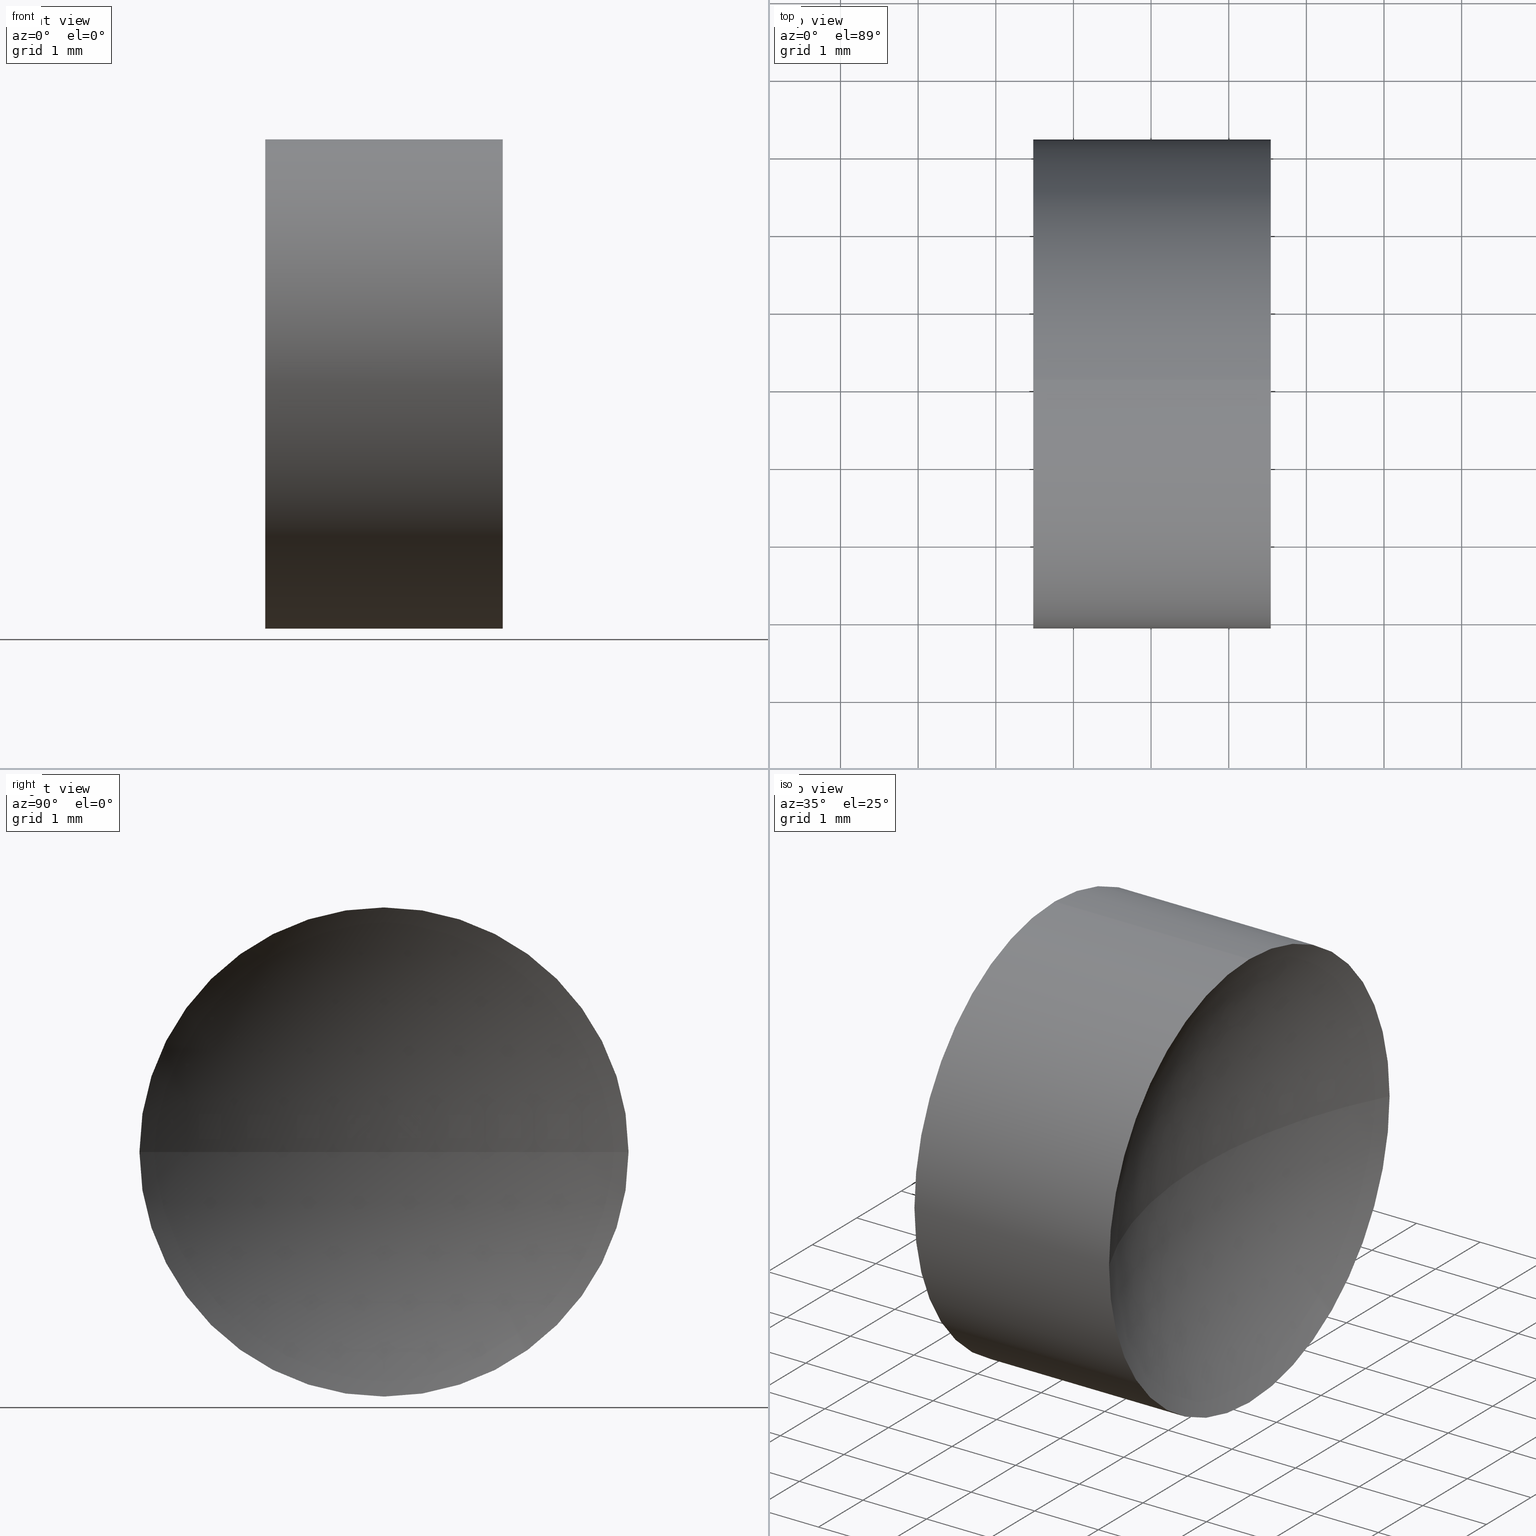
[diagram: canonical four-view strip — front | top / right | iso, engineering-drawing reading convention]
A machine part, canonical four-view strip (front | top / right | iso — engineering-drawing reading convention). The complete STEP part file that produces these views, byte-faithful:
ISO-10303-21;
HEADER;
FILE_DESCRIPTION (( 'STEP AP214' ),
    '1' );
FILE_NAME ('130006.STEP',
    '2019-06-28T06:09:00',
    ( '' ),
    ( '' ),
    'SwSTEP 2.0',
    'SolidWorks 2016',
    '' );
FILE_SCHEMA (( 'AUTOMOTIVE_DESIGN' ));
ENDSEC;

DATA;
#1 = VERTEX_POINT ( 'NONE', #31 ) ;
#2 = ORIENTED_EDGE ( 'NONE', *, *, #81, .T. ) ;
#3 = CARTESIAN_POINT ( 'NONE',  ( 31.51185287174618200, 13.04452057459747700, 0.0000000000000000000 ) ) ;
#4 = CIRCLE ( 'NONE', #230, 3.150000000000001700 ) ;
#5 = ADVANCED_BREP_SHAPE_REPRESENTATION ( '130006', ( #24, #165 ), #105 ) ;
#6 = DIRECTION ( 'NONE',  ( 0.0000000000000000000, 0.0000000000000000000, -1.000000000000000000 ) ) ;
#7 = DIRECTION ( 'NONE',  ( -1.000000000000000000, -0.0000000000000000000, -0.0000000000000000000 ) ) ;
#8 = DIRECTION ( 'NONE',  ( -1.000000000000000000, -0.0000000000000000000, -0.0000000000000000000 ) ) ;
#9 = VERTEX_POINT ( 'NONE', #139 ) ;
#10 = CARTESIAN_POINT ( 'NONE',  ( 24.76185287174618200, 13.04452057459747700, 0.0000000000000000000 ) ) ;
#11 = EDGE_CURVE ( 'NONE', #136, #87, #76, .T. ) ;
#12 = CARTESIAN_POINT ( 'NONE',  ( 16.51185287174617900, 13.04452057459748300, 0.0000000000000000000 ) ) ;
#13 = SURFACE_STYLE_USAGE ( .BOTH. , #160 ) ;
#14 = ORIENTED_EDGE ( 'NONE', *, *, #184, .T. ) ;
#15 =( NAMED_UNIT ( * ) PLANE_ANGLE_UNIT ( ) SI_UNIT ( $, .RADIAN. ) );
#16 = APPLICATION_CONTEXT ( 'automotive_design' ) ;
#17 =( LENGTH_UNIT ( ) NAMED_UNIT ( * ) SI_UNIT ( .MILLI., .METRE. ) );
#18 = ORIENTED_EDGE ( 'NONE', *, *, #100, .F. ) ;
#19 = SURFACE_STYLE_FILL_AREA ( #94 ) ;
#20 = PRODUCT_DEFINITION_SHAPE ( 'NONE', 'NONE',  #169 ) ;
#21 = SURFACE_STYLE_FILL_AREA ( #60 ) ;
#22 = ORIENTED_EDGE ( 'NONE', *, *, #203, .T. ) ;
#23 = VERTEX_POINT ( 'NONE', #208 ) ;
#24 = MANIFOLD_SOLID_BREP ( '��ת1', #52 ) ;
#25 = ORIENTED_EDGE ( 'NONE', *, *, #201, .F. ) ;
#26 = SHAPE_DEFINITION_REPRESENTATION ( #20, #5 ) ;
#27 = CARTESIAN_POINT ( 'NONE',  ( 22.48177749438590200, 13.04452057459747900, 3.150000000000001700 ) ) ;
#28 = DIRECTION ( 'NONE',  ( -1.000000000000000000, -0.0000000000000000000, -0.0000000000000000000 ) ) ;
#29 = ORIENTED_EDGE ( 'NONE', *, *, #71, .F. ) ;
#30 = CARTESIAN_POINT ( 'NONE',  ( 22.48177749438590200, 13.04452057459747900, 0.0000000000000000000 ) ) ;
#31 = CARTESIAN_POINT ( 'NONE',  ( 22.48177749438590200, 9.894520574597480700, -3.857637417314164200E-016 ) ) ;
#32 = DIRECTION ( 'NONE',  ( -1.000000000000000000, -0.0000000000000000000, -0.0000000000000000000 ) ) ;
#33 = CARTESIAN_POINT ( 'NONE',  ( 21.22493055706841100, 13.04452057459747900, 0.0000000000000000000 ) ) ;
#34 =( LENGTH_UNIT ( ) NAMED_UNIT ( * ) SI_UNIT ( .MILLI., .METRE. ) );
#35 = DIRECTION ( 'NONE',  ( 0.0000000000000000000, 0.0000000000000000000, -1.000000000000000000 ) ) ;
#36 = APPLICATION_PROTOCOL_DEFINITION ( 'draft international standard', 'automotive_design', 1998, #16 ) ;
#37 = ADVANCED_FACE ( 'NONE', ( #210 ), #205, .F. ) ;
#38 = DIRECTION ( 'NONE',  ( 0.0000000000000000000, 0.0000000000000000000, -1.000000000000000000 ) ) ;
#39 = PRESENTATION_LAYER_ASSIGNMENT (  '', '', ( #209 ) ) ;
#40 = CIRCLE ( 'NONE', #220, 6.749999999999999100 ) ;
#41 = ORIENTED_EDGE ( 'NONE', *, *, #201, .T. ) ;
#42 = ORIENTED_EDGE ( 'NONE', *, *, #203, .F. ) ;
#43 = ORIENTED_EDGE ( 'NONE', *, *, #200, .F. ) ;
#44 = FACE_OUTER_BOUND ( 'NONE', #96, .T. ) ;
#45 = AXIS2_PLACEMENT_3D ( 'NONE', #77, #162, #59 ) ;
#46 = VERTEX_POINT ( 'NONE', #178 ) ;
#47 = ORIENTED_EDGE ( 'NONE', *, *, #82, .T. ) ;
#48 = VERTEX_POINT ( 'NONE', #27 ) ;
#49 = DIRECTION ( 'NONE',  ( 0.0000000000000000000, 1.000000000000000000, 0.0000000000000000000 ) ) ;
#50 = ORIENTED_EDGE ( 'NONE', *, *, #115, .T. ) ;
#51 = AXIS2_PLACEMENT_3D ( 'NONE', #74, #6, #49 ) ;
#52 = CLOSED_SHELL ( 'NONE', ( #122, #37, #212, #145, #197, #229 ) ) ;
#53 = DIRECTION ( 'NONE',  ( 0.0000000000000000000, 0.0000000000000000000, 1.000000000000000000 ) ) ;
#54 = CARTESIAN_POINT ( 'NONE',  ( 25.54192824910646200, 16.19452057459747600, 0.0000000000000000000 ) ) ;
#55 = CARTESIAN_POINT ( 'NONE',  ( 21.22493055706841100, 13.04452057459747900, 3.150000000000001700 ) ) ;
#56 = DIRECTION ( 'NONE',  ( -1.000000000000000000, -0.0000000000000000000, -0.0000000000000000000 ) ) ;
#57 = AXIS2_PLACEMENT_3D ( 'NONE', #228, #127, #182 ) ;
#58 = DIRECTION ( 'NONE',  ( 0.0000000000000000000, 1.224646799147353200E-016, -1.000000000000000000 ) ) ;
#59 = DIRECTION ( 'NONE',  ( 0.0000000000000000000, 0.0000000000000000000, 1.000000000000000000 ) ) ;
#60 = FILL_AREA_STYLE ('',( #117 ) ) ;
#61 = DIRECTION ( 'NONE',  ( 1.000000000000000000, 0.0000000000000000000, 0.0000000000000000000 ) ) ;
#62 = PRODUCT_CONTEXT ( 'NONE', #199, 'mechanical' ) ;
#63 = STYLED_ITEM ( 'NONE', ( #206 ), #5 ) ;
#64 = CIRCLE ( 'NONE', #65, 3.150000000000001700 ) ;
#65 = AXIS2_PLACEMENT_3D ( 'NONE', #30, #7, #157 ) ;
#66 = ORIENTED_EDGE ( 'NONE', *, *, #11, .T. ) ;
#67 = EDGE_LOOP ( 'NONE', ( #137, #66, #141, #29 ) ) ;
#68 = PRODUCT_RELATED_PRODUCT_CATEGORY ( 'part', '', ( #166 ) ) ;
#69 = DIRECTION ( 'NONE',  ( 0.0000000000000000000, 0.0000000000000000000, 1.000000000000000000 ) ) ;
#70 = CARTESIAN_POINT ( 'NONE',  ( 22.48177749438590200, 13.04452057459747900, -3.150000000000001700 ) ) ;
#71 = EDGE_CURVE ( 'NONE', #9, #186, #114, .T. ) ;
#72 = DIRECTION ( 'NONE',  ( 0.0000000000000000000, 0.0000000000000000000, 1.000000000000000000 ) ) ;
#73 = COLOUR_RGB ( '',1.000000000000000000, 1.000000000000000000, 1.000000000000000000 ) ;
#74 = CARTESIAN_POINT ( 'NONE',  ( 16.51185287174617900, 13.04452057459748300, 0.0000000000000000000 ) ) ;
#75 = DIRECTION ( 'NONE',  ( 0.0000000000000000000, 1.000000000000000000, 0.0000000000000000000 ) ) ;
#76 = CIRCLE ( 'NONE', #88, 6.749999999999999100 ) ;
#77 = CARTESIAN_POINT ( 'NONE',  ( 21.22493055706841100, 13.04452057459747900, 0.0000000000000000000 ) ) ;
#78 =( NAMED_UNIT ( * ) SI_UNIT ( $, .STERADIAN. ) SOLID_ANGLE_UNIT ( ) );
#79 = AXIS2_PLACEMENT_3D ( 'NONE', #211, #185, #80 ) ;
#80 = DIRECTION ( 'NONE',  ( 0.0000000000000000000, 0.0000000000000000000, 1.000000000000000000 ) ) ;
#81 = EDGE_CURVE ( 'NONE', #23, #128, #163, .T. ) ;
#82 = EDGE_CURVE ( 'NONE', #9, #48, #170, .T. ) ;
#83 = MECHANICAL_DESIGN_GEOMETRIC_PRESENTATION_REPRESENTATION (  '', ( #63 ), #90 ) ;
#84 = VECTOR ( 'NONE', #8, 1000.000000000000000 ) ;
#85 = CARTESIAN_POINT ( 'NONE',  ( 25.54192824910646200, 13.04452057459747900, 0.0000000000000000000 ) ) ;
#86 = DIRECTION ( 'NONE',  ( 0.0000000000000000000, 0.0000000000000000000, 1.000000000000000000 ) ) ;
#87 = VERTEX_POINT ( 'NONE', #10 ) ;
#88 = AXIS2_PLACEMENT_3D ( 'NONE', #3, #58, #109 ) ;
#89 = CARTESIAN_POINT ( 'NONE',  ( 31.51185287174618200, 13.04452057459747700, 0.0000000000000000000 ) ) ;
#90 =( GEOMETRIC_REPRESENTATION_CONTEXT ( 3 ) GLOBAL_UNCERTAINTY_ASSIGNED_CONTEXT ( ( #216 ) ) GLOBAL_UNIT_ASSIGNED_CONTEXT ( ( #167, #15, #78 ) ) REPRESENTATION_CONTEXT ( 'NONE', 'WORKASPACE' ) );
#91 = SURFACE_SIDE_STYLE ('',( #19 ) ) ;
#92 = CARTESIAN_POINT ( 'NONE',  ( 0.0000000000000000000, 0.0000000000000000000, 0.0000000000000000000 ) ) ;
#93 = ORIENTED_EDGE ( 'NONE', *, *, #156, .F. ) ;
#94 = FILL_AREA_STYLE ('',( #168 ) ) ;
#95 = EDGE_CURVE ( 'NONE', #136, #9, #149, .T. ) ;
#96 = EDGE_LOOP ( 'NONE', ( #130, #112, #173, #47, #221, #172 ) ) ;
#97 =( GEOMETRIC_REPRESENTATION_CONTEXT ( 3 ) GLOBAL_UNCERTAINTY_ASSIGNED_CONTEXT ( ( #147 ) ) GLOBAL_UNIT_ASSIGNED_CONTEXT ( ( #34, #194, #179 ) ) REPRESENTATION_CONTEXT ( 'NONE', 'WORKASPACE' ) );
#98 = ORIENTED_EDGE ( 'NONE', *, *, #200, .T. ) ;
#99 = AXIS2_PLACEMENT_3D ( 'NONE', #181, #144, #202 ) ;
#100 = EDGE_CURVE ( 'NONE', #23, #136, #219, .T. ) ;
#101 = FACE_OUTER_BOUND ( 'NONE', #142, .T. ) ;
#102 = UNCERTAINTY_MEASURE_WITH_UNIT (LENGTH_MEASURE( 1.000000000000000100E-005 ), #17, 'distance_accuracy_value', 'NONE');
#103 = CIRCLE ( 'NONE', #99, 6.750000000000000900 ) ;
#104 = DIRECTION ( 'NONE',  ( 0.0000000000000000000, 0.0000000000000000000, 1.000000000000000000 ) ) ;
#105 =( GEOMETRIC_REPRESENTATION_CONTEXT ( 3 ) GLOBAL_UNCERTAINTY_ASSIGNED_CONTEXT ( ( #102 ) ) GLOBAL_UNIT_ASSIGNED_CONTEXT ( ( #17, #148, #214 ) ) REPRESENTATION_CONTEXT ( 'NONE', 'WORKASPACE' ) );
#106 = PRODUCT_DEFINITION_CONTEXT ( 'detailed design', #16, 'design' ) ;
#107 = CARTESIAN_POINT ( 'NONE',  ( 25.54192824910646200, 13.04452057459747900, 0.0000000000000000000 ) ) ;
#108 = CARTESIAN_POINT ( 'NONE',  ( 21.22493055706841100, 13.04452057459747900, -3.150000000000001700 ) ) ;
#109 = DIRECTION ( 'NONE',  ( 0.0000000000000000000, 1.000000000000000000, 1.224646799147353500E-016 ) ) ;
#110 = CYLINDRICAL_SURFACE ( 'NONE', #223, 3.150000000000001700 ) ;
#111 = SURFACE_STYLE_USAGE ( .BOTH. , #91 ) ;
#112 = ORIENTED_EDGE ( 'NONE', *, *, #100, .T. ) ;
#113 = AXIS2_PLACEMENT_3D ( 'NONE', #225, #138, #121 ) ;
#114 = CIRCLE ( 'NONE', #207, 3.150000000000001700 ) ;
#115 = EDGE_CURVE ( 'NONE', #186, #87, #40, .T. ) ;
#116 = ORIENTED_EDGE ( 'NONE', *, *, #82, .F. ) ;
#117 = FILL_AREA_STYLE_COLOUR ( '', #231 ) ;
#118 = SPHERICAL_SURFACE ( 'NONE', #51, 6.750000000000001800 ) ;
#119 = DIRECTION ( 'NONE',  ( 0.0000000000000000000, 1.000000000000000000, 0.0000000000000000000 ) ) ;
#120 = ORIENTED_EDGE ( 'NONE', *, *, #156, .T. ) ;
#121 = DIRECTION ( 'NONE',  ( 0.0000000000000000000, 0.0000000000000000000, 1.000000000000000000 ) ) ;
#122 = ADVANCED_FACE ( 'NONE', ( #132 ), #110, .T. ) ;
#123 = AXIS2_PLACEMENT_3D ( 'NONE', #12, #38, #124 ) ;
#124 = DIRECTION ( 'NONE',  ( 0.0000000000000000000, 1.000000000000000000, 0.0000000000000000000 ) ) ;
#125 = AXIS2_PLACEMENT_3D ( 'NONE', #89, #35, #75 ) ;
#126 = APPLICATION_PROTOCOL_DEFINITION ( 'draft international standard', 'automotive_design', 1998, #199 ) ;
#127 = DIRECTION ( 'NONE',  ( -1.000000000000000000, -0.0000000000000000000, -0.0000000000000000000 ) ) ;
#128 = VERTEX_POINT ( 'NONE', #70 ) ;
#129 = DIRECTION ( 'NONE',  ( 0.0000000000000000000, 0.0000000000000000000, 1.000000000000000000 ) ) ;
#130 = ORIENTED_EDGE ( 'NONE', *, *, #81, .F. ) ;
#131 = ORIENTED_EDGE ( 'NONE', *, *, #71, .T. ) ;
#132 = FACE_OUTER_BOUND ( 'NONE', #146, .T. ) ;
#133 = EDGE_CURVE ( 'NONE', #1, #48, #4, .T. ) ;
#134 = CIRCLE ( 'NONE', #215, 6.750000000000002700 ) ;
#135 = AXIS2_PLACEMENT_3D ( 'NONE', #85, #32, #53 ) ;
#136 = VERTEX_POINT ( 'NONE', #189 ) ;
#137 = ORIENTED_EDGE ( 'NONE', *, *, #95, .F. ) ;
#138 = DIRECTION ( 'NONE',  ( -1.000000000000000000, -0.0000000000000000000, -0.0000000000000000000 ) ) ;
#139 = CARTESIAN_POINT ( 'NONE',  ( 25.54192824910646200, 13.04452057459747900, 3.150000000000001700 ) ) ;
#140 = PRESENTATION_LAYER_ASSIGNMENT (  '', '', ( #63 ) ) ;
#141 = ORIENTED_EDGE ( 'NONE', *, *, #115, .F. ) ;
#142 = EDGE_LOOP ( 'NONE', ( #42, #98, #218, #151 ) ) ;
#143 = DIRECTION ( 'NONE',  ( 1.000000000000000000, 0.0000000000000000000, 0.0000000000000000000 ) ) ;
#144 = DIRECTION ( 'NONE',  ( 0.0000000000000000000, 1.224646799147353200E-016, -1.000000000000000000 ) ) ;
#145 = ADVANCED_FACE ( 'NONE', ( #198 ), #118, .F. ) ;
#146 = EDGE_LOOP ( 'NONE', ( #120, #2, #25, #193, #116, #131 ) ) ;
#147 = UNCERTAINTY_MEASURE_WITH_UNIT (LENGTH_MEASURE( 1.000000000000000100E-005 ), #34, 'distance_accuracy_value', 'NONE');
#148 =( NAMED_UNIT ( * ) PLANE_ANGLE_UNIT ( ) SI_UNIT ( $, .RADIAN. ) );
#149 = CIRCLE ( 'NONE', #113, 3.150000000000001700 ) ;
#150 = CIRCLE ( 'NONE', #232, 3.150000000000001700 ) ;
#151 = ORIENTED_EDGE ( 'NONE', *, *, #217, .T. ) ;
#152 = CIRCLE ( 'NONE', #79, 3.150000000000001700 ) ;
#153 = MECHANICAL_DESIGN_GEOMETRIC_PRESENTATION_REPRESENTATION (  '', ( #209 ), #97 ) ;
#154 = CARTESIAN_POINT ( 'NONE',  ( 23.26185287174618200, 13.04452057459748300, 0.0000000000000000000 ) ) ;
#155 = CARTESIAN_POINT ( 'NONE',  ( 31.51185287174618200, 13.04452057459747700, 0.0000000000000000000 ) ) ;
#156 = EDGE_CURVE ( 'NONE', #186, #23, #150, .T. ) ;
#157 = DIRECTION ( 'NONE',  ( 0.0000000000000000000, 0.0000000000000000000, 1.000000000000000000 ) ) ;
#158 = EDGE_LOOP ( 'NONE', ( #164, #18, #93, #50 ) ) ;
#159 = DIRECTION ( 'NONE',  ( -1.000000000000000000, -0.0000000000000000000, -0.0000000000000000000 ) ) ;
#160 = SURFACE_SIDE_STYLE ('',( #21 ) ) ;
#161 = CARTESIAN_POINT ( 'NONE',  ( 22.48177749438590200, 13.04452057459747900, 0.0000000000000000000 ) ) ;
#162 = DIRECTION ( 'NONE',  ( -1.000000000000000000, -0.0000000000000000000, -0.0000000000000000000 ) ) ;
#163 = LINE ( 'NONE', #108, #183 ) ;
#164 = ORIENTED_EDGE ( 'NONE', *, *, #11, .F. ) ;
#165 = AXIS2_PLACEMENT_3D ( 'NONE', #92, #213, #61 ) ;
#166 = PRODUCT ( '130006', '130006', '', ( #62 ) ) ;
#167 =( LENGTH_UNIT ( ) NAMED_UNIT ( * ) SI_UNIT ( .MILLI., .METRE. ) );
#168 = FILL_AREA_STYLE_COLOUR ( '', #73 ) ;
#169 = PRODUCT_DEFINITION ( 'δ֪', '', #177, #106 ) ;
#170 = LINE ( 'NONE', #55, #84 ) ;
#171 = VERTEX_POINT ( 'NONE', #154 ) ;
#172 = ORIENTED_EDGE ( 'NONE', *, *, #184, .F. ) ;
#173 = ORIENTED_EDGE ( 'NONE', *, *, #95, .T. ) ;
#174 = SPHERICAL_SURFACE ( 'NONE', #123, 6.750000000000001800 ) ;
#175 = CARTESIAN_POINT ( 'NONE',  ( 25.54192824910646200, 13.04452057459747900, 0.0000000000000000000 ) ) ;
#176 = CARTESIAN_POINT ( 'NONE',  ( 31.51185287174618200, 13.04452057459747700, 0.0000000000000000000 ) ) ;
#177 = PRODUCT_DEFINITION_FORMATION_WITH_SPECIFIED_SOURCE ( '�κ�', '', #166, .NOT_KNOWN. ) ;
#178 = CARTESIAN_POINT ( 'NONE',  ( 22.48177749438590200, 16.19452057459748000, 0.0000000000000000000 ) ) ;
#179 =( NAMED_UNIT ( * ) SI_UNIT ( $, .STERADIAN. ) SOLID_ANGLE_UNIT ( ) );
#180 = SPHERICAL_SURFACE ( 'NONE', #191, 6.750000000000000000 ) ;
#181 = CARTESIAN_POINT ( 'NONE',  ( 16.51185287174617900, 13.04452057459748300, 0.0000000000000000000 ) ) ;
#182 = DIRECTION ( 'NONE',  ( 0.0000000000000000000, 0.0000000000000000000, 1.000000000000000000 ) ) ;
#183 = VECTOR ( 'NONE', #159, 1000.000000000000000 ) ;
#184 = EDGE_CURVE ( 'NONE', #128, #1, #64, .T. ) ;
#185 = DIRECTION ( 'NONE',  ( -1.000000000000000000, -0.0000000000000000000, -0.0000000000000000000 ) ) ;
#186 = VERTEX_POINT ( 'NONE', #54 ) ;
#187 = CYLINDRICAL_SURFACE ( 'NONE', #45, 3.150000000000001700 ) ;
#188 = PRESENTATION_STYLE_ASSIGNMENT (( #13 ) ) ;
#189 = CARTESIAN_POINT ( 'NONE',  ( 25.54192824910646200, 9.894520574597477100, -3.857637417314163700E-016 ) ) ;
#190 = DIRECTION ( 'NONE',  ( -1.000000000000000000, -0.0000000000000000000, -0.0000000000000000000 ) ) ;
#191 = AXIS2_PLACEMENT_3D ( 'NONE', #176, #222, #119 ) ;
#192 = DIRECTION ( 'NONE',  ( 1.000000000000000000, 0.0000000000000000000, 0.0000000000000000000 ) ) ;
#193 = ORIENTED_EDGE ( 'NONE', *, *, #217, .F. ) ;
#194 =( NAMED_UNIT ( * ) PLANE_ANGLE_UNIT ( ) SI_UNIT ( $, .RADIAN. ) );
#195 = EDGE_LOOP ( 'NONE', ( #43, #22, #41, #14 ) ) ;
#196 = DIRECTION ( 'NONE',  ( -1.000000000000000000, -0.0000000000000000000, -0.0000000000000000000 ) ) ;
#197 = ADVANCED_FACE ( 'NONE', ( #204 ), #180, .F. ) ;
#198 = FACE_OUTER_BOUND ( 'NONE', #195, .T. ) ;
#199 = APPLICATION_CONTEXT ( 'automotive_design' ) ;
#200 = EDGE_CURVE ( 'NONE', #171, #1, #103, .T. ) ;
#201 = EDGE_CURVE ( 'NONE', #46, #128, #224, .T. ) ;
#202 = DIRECTION ( 'NONE',  ( 0.0000000000000000000, 1.000000000000000000, 1.224646799147353500E-016 ) ) ;
#203 = EDGE_CURVE ( 'NONE', #171, #46, #134, .T. ) ;
#204 = FACE_OUTER_BOUND ( 'NONE', #158, .T. ) ;
#205 = SPHERICAL_SURFACE ( 'NONE', #125, 6.750000000000000000 ) ;
#206 = PRESENTATION_STYLE_ASSIGNMENT (( #111 ) ) ;
#207 = AXIS2_PLACEMENT_3D ( 'NONE', #107, #190, #104 ) ;
#208 = CARTESIAN_POINT ( 'NONE',  ( 25.54192824910646200, 13.04452057459747900, -3.150000000000001700 ) ) ;
#209 = STYLED_ITEM ( 'NONE', ( #188 ), #24 ) ;
#210 = FACE_OUTER_BOUND ( 'NONE', #67, .T. ) ;
#211 = CARTESIAN_POINT ( 'NONE',  ( 22.48177749438590200, 13.04452057459747900, 0.0000000000000000000 ) ) ;
#212 = ADVANCED_FACE ( 'NONE', ( #101 ), #174, .F. ) ;
#213 = DIRECTION ( 'NONE',  ( 0.0000000000000000000, 0.0000000000000000000, 1.000000000000000000 ) ) ;
#214 =( NAMED_UNIT ( * ) SI_UNIT ( $, .STERADIAN. ) SOLID_ANGLE_UNIT ( ) );
#215 = AXIS2_PLACEMENT_3D ( 'NONE', #227, #129, #143 ) ;
#216 = UNCERTAINTY_MEASURE_WITH_UNIT (LENGTH_MEASURE( 1.000000000000000100E-005 ), #167, 'distance_accuracy_value', 'NONE');
#217 = EDGE_CURVE ( 'NONE', #48, #46, #152, .T. ) ;
#218 = ORIENTED_EDGE ( 'NONE', *, *, #133, .T. ) ;
#219 = CIRCLE ( 'NONE', #135, 3.150000000000001700 ) ;
#220 = AXIS2_PLACEMENT_3D ( 'NONE', #155, #72, #192 ) ;
#221 = ORIENTED_EDGE ( 'NONE', *, *, #133, .F. ) ;
#222 = DIRECTION ( 'NONE',  ( 0.0000000000000000000, 0.0000000000000000000, -1.000000000000000000 ) ) ;
#223 = AXIS2_PLACEMENT_3D ( 'NONE', #33, #196, #226 ) ;
#224 = CIRCLE ( 'NONE', #57, 3.150000000000001700 ) ;
#225 = CARTESIAN_POINT ( 'NONE',  ( 25.54192824910646200, 13.04452057459747900, 0.0000000000000000000 ) ) ;
#226 = DIRECTION ( 'NONE',  ( 0.0000000000000000000, 0.0000000000000000000, 1.000000000000000000 ) ) ;
#227 = CARTESIAN_POINT ( 'NONE',  ( 16.51185287174617900, 13.04452057459748300, 0.0000000000000000000 ) ) ;
#228 = CARTESIAN_POINT ( 'NONE',  ( 22.48177749438590200, 13.04452057459747900, 0.0000000000000000000 ) ) ;
#229 = ADVANCED_FACE ( 'NONE', ( #44 ), #187, .T. ) ;
#230 = AXIS2_PLACEMENT_3D ( 'NONE', #161, #56, #69 ) ;
#231 = COLOUR_RGB ( '',1.000000000000000000, 1.000000000000000000, 1.000000000000000000 ) ;
#232 = AXIS2_PLACEMENT_3D ( 'NONE', #175, #28, #86 ) ;
ENDSEC;
END-ISO-10303-21;
